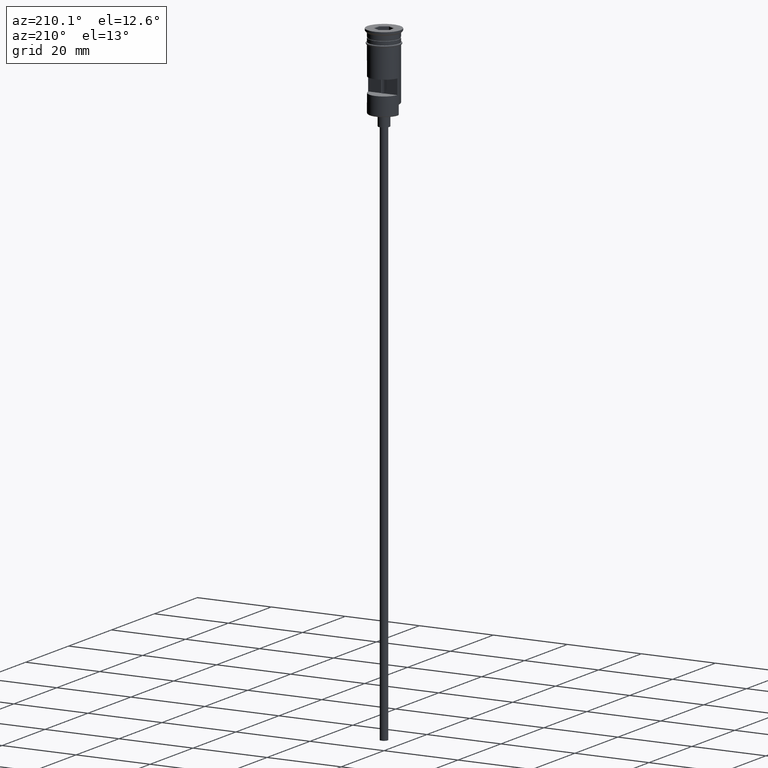
[diagram: clean part render]
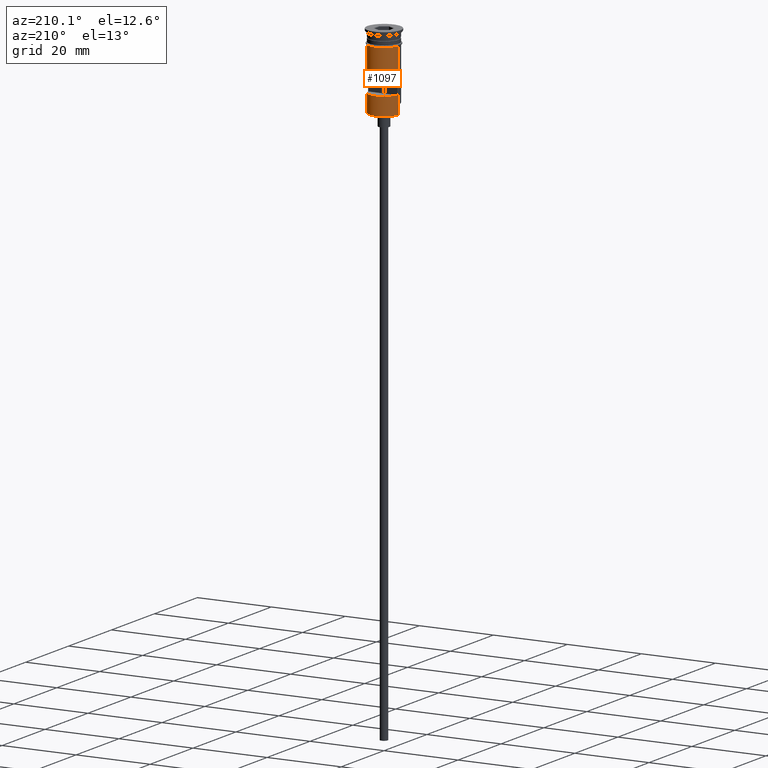
[diagram: same view with one face highlighted and labeled with its STEP entity id]
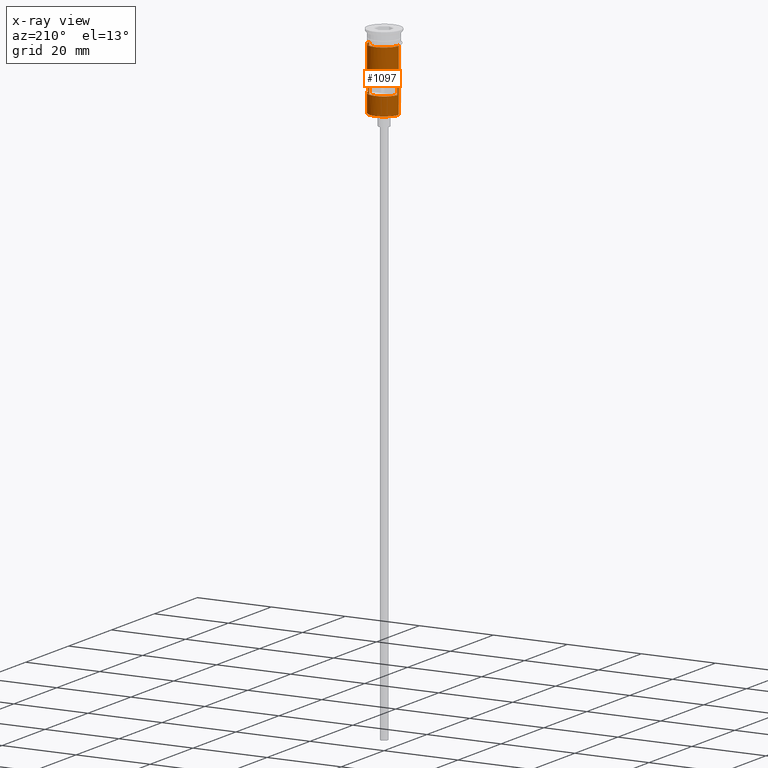
[diagram: x-ray of the same camera — body ghosted, the highlighted face saturated]
A machine part, auxiliary view. The second image highlights one B-rep face of the part: STEP entity #1097.
The next image is the same camera in x-ray: the body ghosted, the highlighted face saturated — about 0% of this face is hidden behind the body in this view.
In plain terms, the highlighted cylindrical surface (edge-blend (fillet) strip) has radius 4 mm, axis along (-0, -0, 1).
Its self-contained STEP definition (entity closure, byte-faithful):
#6 = VERTEX_POINT ( 'NONE', #1461 ) ;
#70 = CARTESIAN_POINT ( 'NONE',  ( 3.954743986657037524, 0.5999999999999996447, 0.000000000000000000 ) ) ;
#79 = ORIENTED_EDGE ( 'NONE', *, *, #756, .F. ) ;
#80 = DIRECTION ( 'NONE',  ( -0.000000000000000000, -0.000000000000000000, 1.000000000000000000 ) ) ;
#122 = CARTESIAN_POINT ( 'NONE',  ( 0.000000000000000000, 0.000000000000000000, -20.29999999999997584 ) ) ;
#157 = VERTEX_POINT ( 'NONE', #484 ) ;
#197 = DIRECTION ( 'NONE',  ( -0.000000000000000000, -0.000000000000000000, 1.000000000000000000 ) ) ;
#224 = LINE ( 'NONE', #1293, #1391 ) ;
#243 = EDGE_CURVE ( 'NONE', #157, #1194, #439, .T. ) ;
#250 = CARTESIAN_POINT ( 'NONE',  ( -3.999999999999997335, 0.000000000000000000, -17.79999999999998295 ) ) ;
#267 = CARTESIAN_POINT ( 'NONE',  ( 4.000000000000000000, 0.000000000000000000, 0.000000000000000000 ) ) ;
#281 = DIRECTION ( 'NONE',  ( -0.000000000000000000, -0.000000000000000000, 1.000000000000000000 ) ) ;
#287 = LINE ( 'NONE', #772, #446 ) ;
#298 = DIRECTION ( 'NONE',  ( -0.000000000000000000, -0.000000000000000000, 1.000000000000000000 ) ) ;
#301 = CARTESIAN_POINT ( 'NONE',  ( -3.954743986657037524, 0.5999999999999996447, -11.50000000000000000 ) ) ;
#319 = DIRECTION ( 'NONE',  ( 1.000000000000000000, 0.000000000000000000, 0.000000000000000000 ) ) ;
#325 = VERTEX_POINT ( 'NONE', #1063 ) ;
#332 = CARTESIAN_POINT ( 'NONE',  ( -3.999999999999997335, 0.000000000000000000, -20.49999999999999645 ) ) ;
#333 = CARTESIAN_POINT ( 'NONE',  ( 0.000000000000000000, 0.000000000000000000, -3.799999999999998490 ) ) ;
#389 = DIRECTION ( 'NONE',  ( 0.000000000000000000, 0.000000000000000000, 1.000000000000000000 ) ) ;
#391 = VECTOR ( 'NONE', #651, 1000.000000000000000 ) ;
#433 = ORIENTED_EDGE ( 'NONE', *, *, #504, .T. ) ;
#436 = DIRECTION ( 'NONE',  ( 0.000000000000000000, 0.000000000000000000, 1.000000000000000000 ) ) ;
#439 = CIRCLE ( 'NONE', #609, 4.000000000000000000 ) ;
#446 = VECTOR ( 'NONE', #298, 1000.000000000000000 ) ;
#461 = LINE ( 'NONE', #332, #1153 ) ;
#466 = VERTEX_POINT ( 'NONE', #250 ) ;
#484 = CARTESIAN_POINT ( 'NONE',  ( 3.954743986657038413, 0.5999999999999996447, -15.50000000000000000 ) ) ;
#502 = DIRECTION ( 'NONE',  ( -0.000000000000000000, 0.000000000000000000, -1.000000000000000000 ) ) ;
#504 = EDGE_CURVE ( 'NONE', #860, #1299, #568, .T. ) ;
#552 = CYLINDRICAL_SURFACE ( 'NONE', #1439, 4.000000000000000000 ) ;
#568 = CIRCLE ( 'NONE', #635, 4.000000000000000000 ) ;
#576 = DIRECTION ( 'NONE',  ( 1.000000000000000000, 0.000000000000000000, 0.000000000000000000 ) ) ;
#594 = CIRCLE ( 'NONE', #615, 4.000000000000000000 ) ;
#609 = AXIS2_PLACEMENT_3D ( 'NONE', #1507, #436, #783 ) ;
#615 = AXIS2_PLACEMENT_3D ( 'NONE', #333, #927, #319 ) ;
#623 = EDGE_LOOP ( 'NONE', ( #79, #1539, #1044, #630 ) ) ;
#630 = ORIENTED_EDGE ( 'NONE', *, *, #243, .F. ) ;
#635 = AXIS2_PLACEMENT_3D ( 'NONE', #122, #389, #864 ) ;
#650 = FACE_BOUND ( 'NONE', #623, .T. ) ;
#651 = DIRECTION ( 'NONE',  ( -0.000000000000000000, -0.000000000000000000, 1.000000000000000000 ) ) ;
#655 = CARTESIAN_POINT ( 'NONE',  ( 3.954743986657038413, 0.5999999999999996447, -11.50000000000000000 ) ) ;
#656 = EDGE_CURVE ( 'NONE', #466, #325, #1033, .T. ) ;
#668 = VERTEX_POINT ( 'NONE', #301 ) ;
#697 = LINE ( 'NONE', #70, #1049 ) ;
#716 = ORIENTED_EDGE ( 'NONE', *, *, #1407, .F. ) ;
#756 = EDGE_CURVE ( 'NONE', #1544, #157, #697, .T. ) ;
#772 = CARTESIAN_POINT ( 'NONE',  ( 3.999999999999997335, 4.898587196589409870E-16, -20.49999999999999645 ) ) ;
#783 = DIRECTION ( 'NONE',  ( -1.000000000000000000, 0.000000000000000000, 0.000000000000000000 ) ) ;
#800 = CARTESIAN_POINT ( 'NONE',  ( 0.000000000000000000, 0.000000000000000000, 0.000000000000000000 ) ) ;
#804 = DIRECTION ( 'NONE',  ( -0.000000000000000000, -0.000000000000000000, 1.000000000000000000 ) ) ;
#805 = CARTESIAN_POINT ( 'NONE',  ( -3.954743986657037524, 0.5999999999999996447, -15.50000000000000000 ) ) ;
#858 = DIRECTION ( 'NONE',  ( 1.000000000000000000, 0.000000000000000000, 0.000000000000000000 ) ) ;
#860 = VERTEX_POINT ( 'NONE', #1237 ) ;
#864 = DIRECTION ( 'NONE',  ( -1.000000000000000000, 0.000000000000000000, 0.000000000000000000 ) ) ;
#866 = AXIS2_PLACEMENT_3D ( 'NONE', #1332, #502, #858 ) ;
#902 = ORIENTED_EDGE ( 'NONE', *, *, #1580, .T. ) ;
#927 = DIRECTION ( 'NONE',  ( -0.000000000000000000, -0.000000000000000000, 1.000000000000000000 ) ) ;
#959 = CARTESIAN_POINT ( 'NONE',  ( -3.999999999999997335, 0.000000000000000000, -20.29999999999997584 ) ) ;
#1033 = LINE ( 'NONE', #1251, #391 ) ;
#1044 = ORIENTED_EDGE ( 'NONE', *, *, #1143, .F. ) ;
#1049 = VECTOR ( 'NONE', #1170, 1000.000000000000000 ) ;
#1063 = CARTESIAN_POINT ( 'NONE',  ( -4.000000000000000000, 4.898587196589412829E-16, -3.799999999999998490 ) ) ;
#1097 = ADVANCED_FACE ( 'NONE', ( #650, #1517 ), #552, .T. ) ;
#1125 = VECTOR ( 'NONE', #281, 1000.000000000000000 ) ;
#1143 = EDGE_CURVE ( 'NONE', #1194, #668, #224, .T. ) ;
#1153 = VECTOR ( 'NONE', #804, 1000.000000000000000 ) ;
#1170 = DIRECTION ( 'NONE',  ( 0.000000000000000000, 0.000000000000000000, -1.000000000000000000 ) ) ;
#1178 = CARTESIAN_POINT ( 'NONE',  ( 4.000000000000000000, 4.898587196589412829E-16, -17.79999999999998295 ) ) ;
#1189 = EDGE_CURVE ( 'NONE', #6, #325, #594, .T. ) ;
#1194 = VERTEX_POINT ( 'NONE', #805 ) ;
#1237 = CARTESIAN_POINT ( 'NONE',  ( 3.999999999999997335, 4.898587196589409870E-16, -20.29999999999997584 ) ) ;
#1251 = CARTESIAN_POINT ( 'NONE',  ( -4.000000000000000000, 4.898587196589412829E-16, 0.000000000000000000 ) ) ;
#1267 = ORIENTED_EDGE ( 'NONE', *, *, #656, .T. ) ;
#1282 = ORIENTED_EDGE ( 'NONE', *, *, #1189, .F. ) ;
#1293 = CARTESIAN_POINT ( 'NONE',  ( -3.954743986657037524, 0.5999999999999996447, 0.000000000000000000 ) ) ;
#1299 = VERTEX_POINT ( 'NONE', #959 ) ;
#1332 = CARTESIAN_POINT ( 'NONE',  ( 0.000000000000000000, 0.000000000000000000, -11.50000000000000000 ) ) ;
#1356 = LINE ( 'NONE', #267, #1125 ) ;
#1391 = VECTOR ( 'NONE', #197, 1000.000000000000000 ) ;
#1402 = EDGE_CURVE ( 'NONE', #668, #1544, #1574, .T. ) ;
#1407 = EDGE_CURVE ( 'NONE', #1566, #6, #1356, .T. ) ;
#1439 = AXIS2_PLACEMENT_3D ( 'NONE', #800, #80, #576 ) ;
#1450 = EDGE_LOOP ( 'NONE', ( #902, #1267, #1282, #716, #1498, #433 ) ) ;
#1461 = CARTESIAN_POINT ( 'NONE',  ( 4.000000000000000000, 0.000000000000000000, -3.799999999999998490 ) ) ;
#1498 = ORIENTED_EDGE ( 'NONE', *, *, #1529, .F. ) ;
#1507 = CARTESIAN_POINT ( 'NONE',  ( 0.000000000000000000, 0.000000000000000000, -15.50000000000000000 ) ) ;
#1517 = FACE_OUTER_BOUND ( 'NONE', #1450, .T. ) ;
#1529 = EDGE_CURVE ( 'NONE', #860, #1566, #287, .T. ) ;
#1539 = ORIENTED_EDGE ( 'NONE', *, *, #1402, .F. ) ;
#1544 = VERTEX_POINT ( 'NONE', #655 ) ;
#1566 = VERTEX_POINT ( 'NONE', #1178 ) ;
#1574 = CIRCLE ( 'NONE', #866, 4.000000000000000000 ) ;
#1580 = EDGE_CURVE ( 'NONE', #1299, #466, #461, .T. ) ;